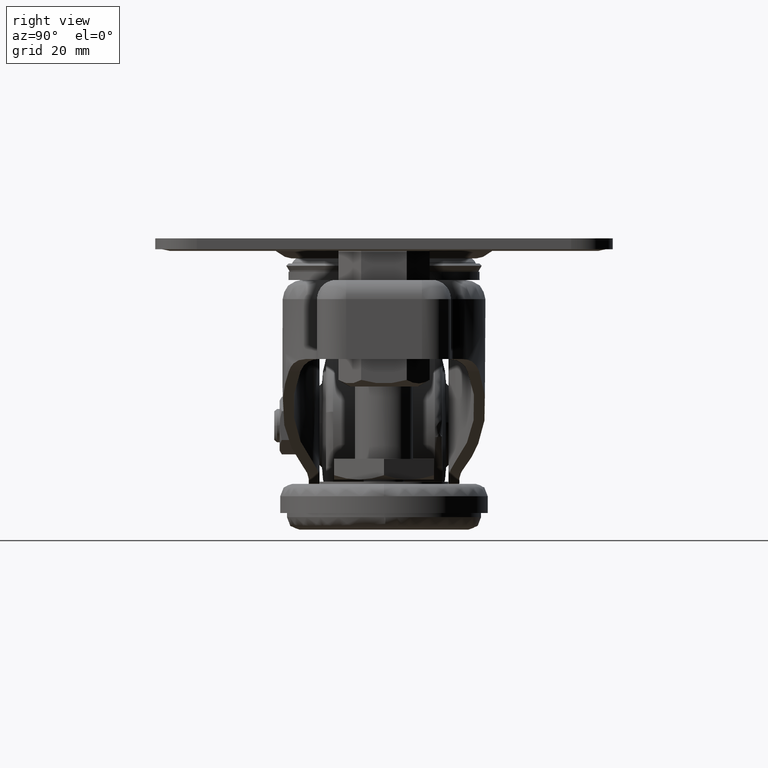
[diagram: clean part render]
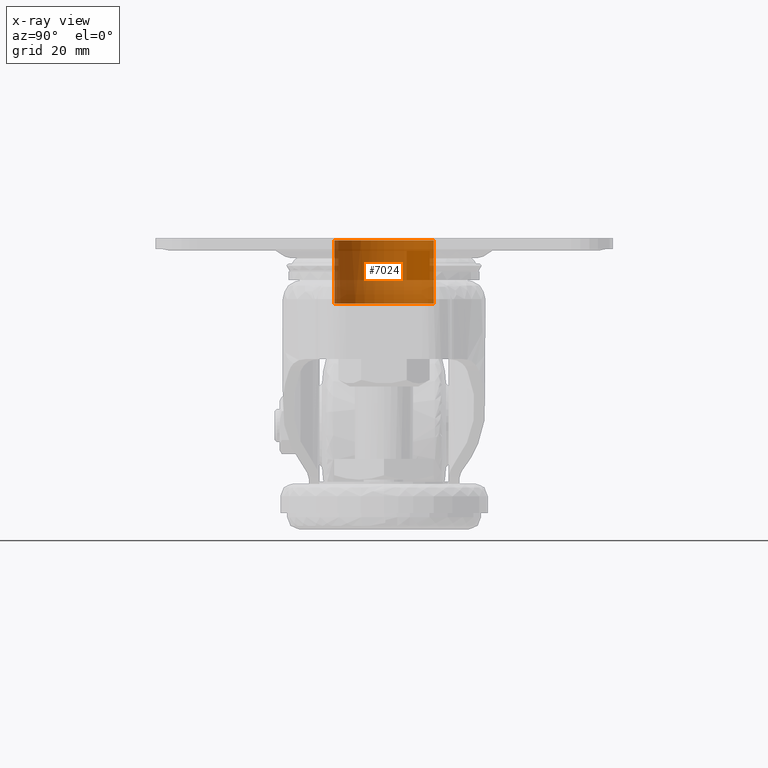
[diagram: x-ray — body ghosted, one internal face saturated and labeled with its STEP entity id]
A machine part, right view, then the same camera in x-ray: the body is ghosted and one INTERNAL B-rep face — a face not visible from any outside direction — is saturated and labeled: STEP entity #7024.
In plain terms, the highlighted face is a freeform B-spline surface patch.
Its self-contained STEP definition (entity closure, byte-faithful):
#6863=CARTESIAN_POINT('',(-0.104718426877602,-11.999543076884400,-0.500000000122260));
#6864=VERTEX_POINT('',#6863);
#6870=CARTESIAN_POINT('',(0.941509148856404,-11.963008004787801,-0.500000000000000));
#6871=VERTEX_POINT('',#6870);
#6872=CARTESIAN_POINT('',(0.941509148856404,-11.963008004787801,-0.500000000000000));
#6873=CARTESIAN_POINT('',(0.593518957155842,-11.990398148776899,-0.500000000040725));
#6874=CARTESIAN_POINT('',(0.244334802631328,-12.002591187578901,-0.500000000081540));
#6875=CARTESIAN_POINT('',(-0.104718426877602,-11.999543076884400,-0.500000000122260));
#6876=B_SPLINE_CURVE_WITH_KNOTS('',3,(#6872,#6873,#6874,#6875),.UNSPECIFIED.,.F.,.U.,(4,4),(9.493607E-009,1.047202743890759),.UNSPECIFIED.);
#6877=EDGE_CURVE('',#6871,#6864,#6876,.T.);
#6913=CARTESIAN_POINT('',(-0.941509148856404,11.963008004788030,-0.500000000000000));
#6914=VERTEX_POINT('',#6913);
#6922=CARTESIAN_POINT('',(-12.0,1.136868E-013,-0.500000000000000));
#6923=VERTEX_POINT('',#6922);
#6924=CARTESIAN_POINT('',(-12.0,1.136868E-013,-0.500000000000000));
#6925=CARTESIAN_POINT('',(-12.0,11.092685899784877,-0.500000000000001));
#6926=CARTESIAN_POINT('',(-0.941509148856404,11.963008004788028,-0.500000000000000));
#6934=(BOUNDED_CURVE()B_SPLINE_CURVE(2,(#6924,#6925,#6926),.UNSPECIFIED.,.F.,.U.)B_SPLINE_CURVE_WITH_KNOTS((3,3),(0.0,0.236331300631015),.UNSPECIFIED.)CURVE()GEOMETRIC_REPRESENTATION_ITEM()RATIONAL_B_SPLINE_CURVE((1.0,0.723120658607249,0.969723356168159))REPRESENTATION_ITEM(''));
#6935=EDGE_CURVE('',#6923,#6914,#6934,.T.);
#6937=CARTESIAN_POINT('',(-0.104718426877602,-11.999543076884406,-0.500000000122260));
#6938=CARTESIAN_POINT('',(-12.000000000000533,-11.895734526312436,-0.500000000061131));
#6939=CARTESIAN_POINT('',(-12.0,1.136868E-013,-0.500000000000000));
#6947=(BOUNDED_CURVE()B_SPLINE_CURVE(2,(#6937,#6938,#6939),.UNSPECIFIED.,.F.,.U.)B_SPLINE_CURVE_WITH_KNOTS((3,3),(0.751539894348140,1.0),.UNSPECIFIED.)CURVE()GEOMETRIC_REPRESENTATION_ITEM()RATIONAL_B_SPLINE_CURVE((0.996414028069966,0.708910879635585,1.0))REPRESENTATION_ITEM(''));
#6948=EDGE_CURVE('',#6864,#6923,#6947,.T.);
#6957=CARTESIAN_POINT('',(-0.941509148734146,11.963008004797651,-16.079994875000001));
#6958=CARTESIAN_POINT('',(-12.904517153531678,11.021498856063499,-16.079994875000011));
#6959=CARTESIAN_POINT('',(-11.963008004797530,-0.941509148734033,-16.079994875000001));
#6960=CARTESIAN_POINT('',(-11.021498856063385,-12.904517153531565,-16.079994875000011));
#6961=CARTESIAN_POINT('',(0.941509148734146,-11.963008004797420,-16.079994875000001));
#6962=CARTESIAN_POINT('',(-0.941509148734146,11.963008004797651,-0.110500128125000));
#6963=CARTESIAN_POINT('',(-12.904517153531678,11.021498856063499,-0.110500128125001));
#6964=CARTESIAN_POINT('',(-11.963008004797530,-0.941509148734033,-0.110500128125000));
#6965=CARTESIAN_POINT('',(-11.021498856063385,-12.904517153531565,-0.110500128125001));
#6966=CARTESIAN_POINT('',(0.941509148734146,-11.963008004797420,-0.110500128125000));
#6974=(BOUNDED_SURFACE()B_SPLINE_SURFACE(2,1,((#6957,#6962),(#6958,#6963),(#6959,#6964),(#6960,#6965),(#6961,#6966)),.UNSPECIFIED.,.F.,.F.,.U.)B_SPLINE_SURFACE_WITH_KNOTS((3,2,3),(2,2),(0.0,19.882250993908560,39.764501987817120),(0.0,15.969494746875000),.UNSPECIFIED.)GEOMETRIC_REPRESENTATION_ITEM()RATIONAL_B_SPLINE_SURFACE(((1.0,1.0),(0.707106781186548,0.707106781186548),(1.0,1.0),(0.707106781186548,0.707106781186548),(1.0,1.0)))REPRESENTATION_ITEM('')SURFACE());
#6975=CARTESIAN_POINT('',(-11.999999999999959,0.0,-15.699994999999999));
#6976=VERTEX_POINT('',#6975);
#6977=CARTESIAN_POINT('',(-0.941509148856400,11.963008004787969,-15.699994999999999));
#6978=VERTEX_POINT('',#6977);
#6979=CARTESIAN_POINT('',(-11.999999999999959,0.0,-15.699994999999999));
#6980=CARTESIAN_POINT('',(-11.999999999999959,11.092685899784733,-15.699994999999998));
#6981=CARTESIAN_POINT('',(-0.941509148856396,11.963008004787916,-15.699994999999998));
#6989=(BOUNDED_CURVE()B_SPLINE_CURVE(2,(#6979,#6980,#6981),.UNSPECIFIED.,.F.,.U.)B_SPLINE_CURVE_WITH_KNOTS((3,3),(0.0,0.236331300631014),.UNSPECIFIED.)CURVE()GEOMETRIC_REPRESENTATION_ITEM()RATIONAL_B_SPLINE_CURVE((1.0,0.723120658607250,0.969723356168158))REPRESENTATION_ITEM(''));
#6990=EDGE_CURVE('',#6976,#6978,#6989,.T.);
#6991=ORIENTED_EDGE('',*,*,#6990,.F.);
#6992=CARTESIAN_POINT('',(0.941509148856411,-11.963008004787859,-15.699994999999999));
#6993=VERTEX_POINT('',#6992);
#6994=CARTESIAN_POINT('',(0.941509148856413,-11.963008004787913,-15.699995000000007));
#6995=CARTESIAN_POINT('',(0.471481284153478,-12.000000000000005,-15.699995000000003));
#6996=CARTESIAN_POINT('',(4.263256E-014,-12.0,-15.699994999999999));
#6997=CARTESIAN_POINT('',(-11.999999999999957,-12.0,-15.699994999999999));
#6998=CARTESIAN_POINT('',(-11.999999999999959,0.0,-15.699994999999999));
#7006=(BOUNDED_CURVE()B_SPLINE_CURVE(2,(#6994,#6995,#6996,#6997,#6998),.UNSPECIFIED.,.F.,.U.)B_SPLINE_CURVE_WITH_KNOTS((3,2,3),(0.736331300631015,0.750000000000000,1.0),.UNSPECIFIED.)CURVE()GEOMETRIC_REPRESENTATION_ITEM()RATIONAL_B_SPLINE_CURVE((0.969723356168160,0.983986122579299,1.0,0.707106781186548,1.0))REPRESENTATION_ITEM(''));
#7007=EDGE_CURVE('',#6993,#6976,#7006,.T.);
#7008=ORIENTED_EDGE('',*,*,#7007,.F.);
#7009=CARTESIAN_POINT('',(0.941509148856411,-11.963008004787859,-15.699994999999999));
#7010=CARTESIAN_POINT('',(0.941509148856404,-11.963008004787801,-0.500000000000000));
#7011=QUASI_UNIFORM_CURVE('',1,(#7009,#7010),.UNSPECIFIED.,.F.,.U.);
#7012=EDGE_CURVE('',#6993,#6871,#7011,.T.);
#7013=ORIENTED_EDGE('',*,*,#7012,.T.);
#7014=ORIENTED_EDGE('',*,*,#6877,.T.);
#7015=ORIENTED_EDGE('',*,*,#6948,.T.);
#7016=ORIENTED_EDGE('',*,*,#6935,.T.);
#7017=CARTESIAN_POINT('',(-0.941509148856400,11.963008004787969,-15.699994999999999));
#7018=CARTESIAN_POINT('',(-0.941509148856404,11.963008004788030,-0.500000000000000));
#7019=QUASI_UNIFORM_CURVE('',1,(#7017,#7018),.UNSPECIFIED.,.F.,.U.);
#7020=EDGE_CURVE('',#6978,#6914,#7019,.T.);
#7021=ORIENTED_EDGE('',*,*,#7020,.F.);
#7022=EDGE_LOOP('',(#6991,#7008,#7013,#7014,#7015,#7016,#7021));
#7023=FACE_OUTER_BOUND('',#7022,.T.);
#7024=ADVANCED_FACE('',(#7023),#6974,.T.);